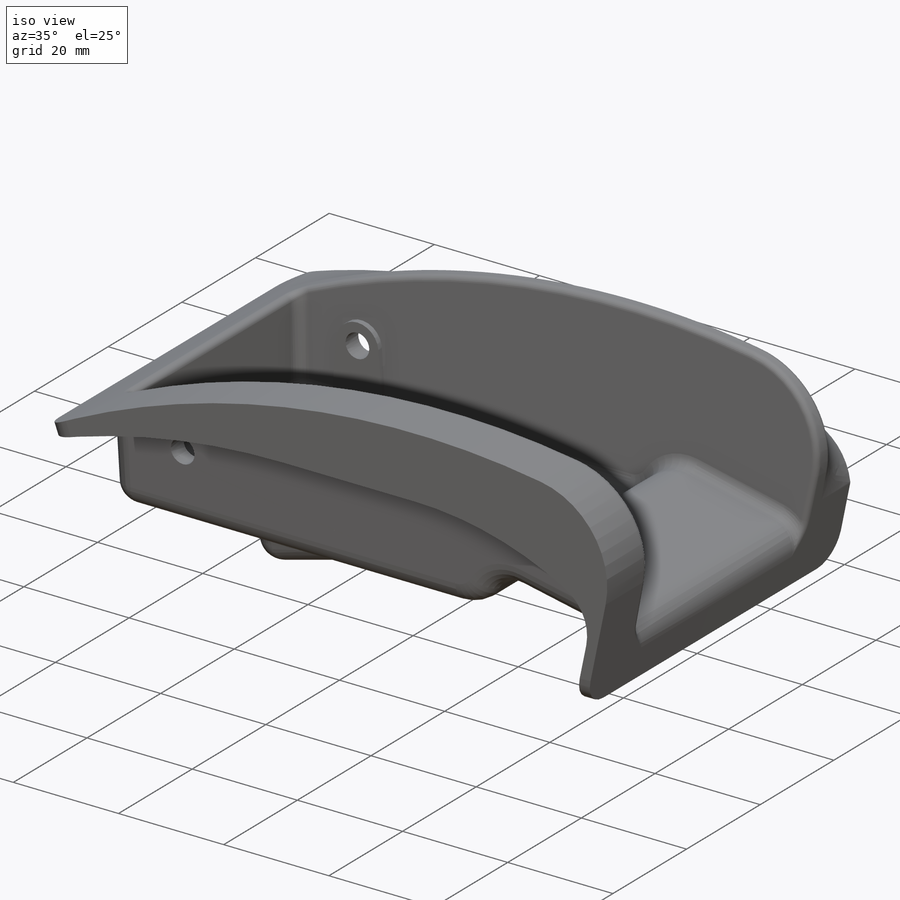
[diagram: iso view]
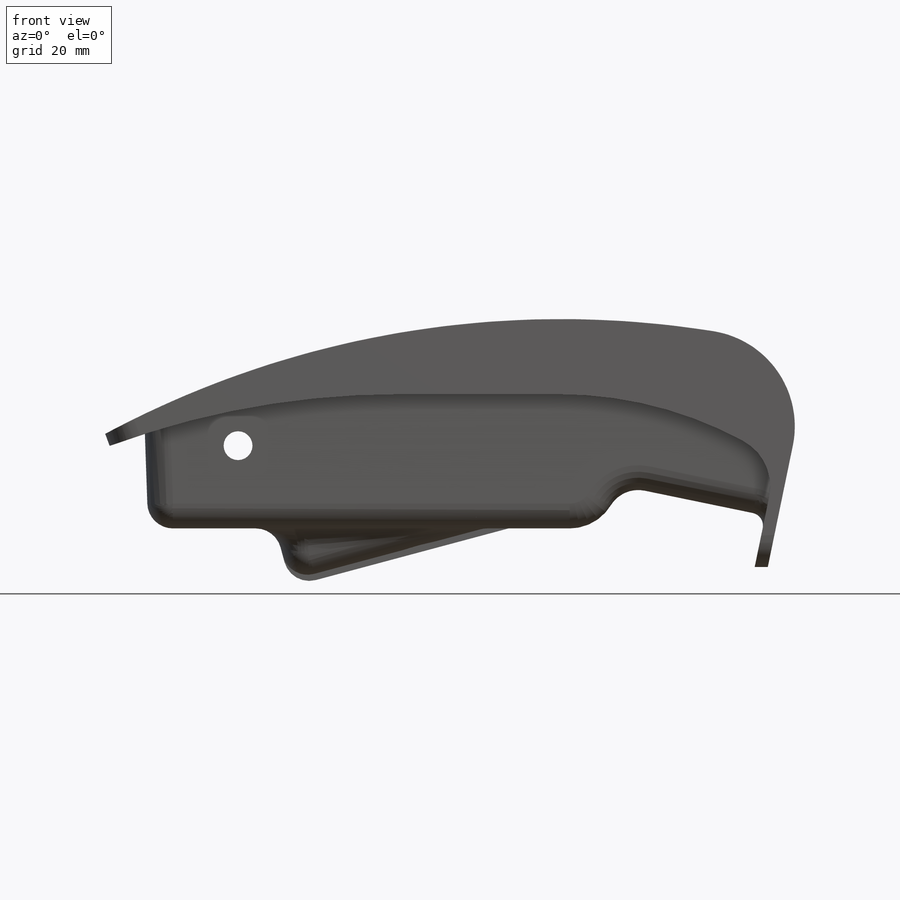
[diagram: front view]
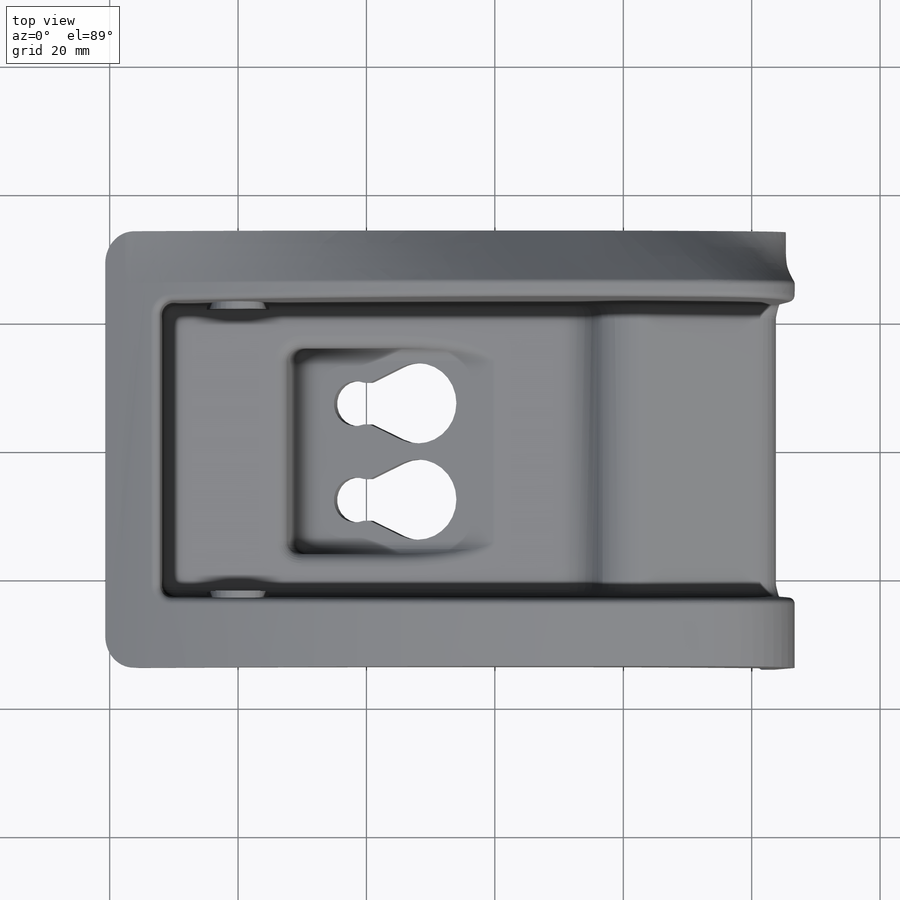
[diagram: top view]
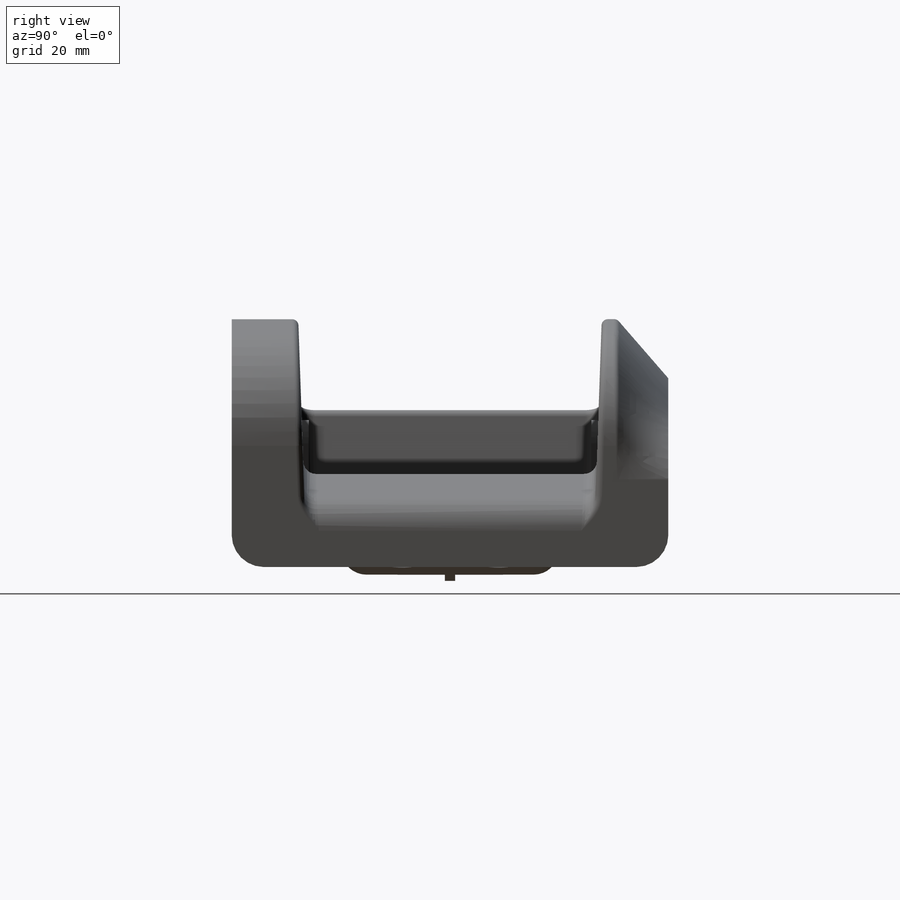
[diagram: right view]
SOLIDWORKS PART (.sldprt)
format: sldprt  version: not decoded by parser v0  size: 1,120,256 bytes
history: native  units: mm
features: sketch x20, extrude x12, plane x6, cut_extrude x4, shell x4, fillet x3, material x1 (+8 scaffold rows collapsed)
feature tree (58):
  scaffold x8  (default folders/planes/origin — collapsed)
  material  "Material <nicht festgelegt>"
  plane  "Vorne"
  plane  "Oben"
  plane  "Rechts"
  sketch  "Skizze1"  dims[c1.D1=100.0mm c1.D2=60.0mm c2.D1=130.0mm c2.D3=15.0mm c2.D4=10.0mm c2.D5=4.0mm c2.D6=60.0mm c3.D5=50.0mm c3.D1=68.0mm c4.D5=2.0mm c4.D6=2.0mm c4.D7=5.0mm]
  sketch  "Skizze3"
  cut_extrude  "Schnitt-Linear austragen1"  [1 undecoded]
  sketch  "Skizze4"  dims[D1=2.0mm]
  extrude  "Aufsatz-Linear austragen1"  [1 undecoded]
  fillet  "Verrundung1"  Radius=10mm
  sketch  "Skizze6"  dims[c1.D1=6.0mm c1.D2=6.0mm c2.D1=54.0mm c2.D3=17.0mm c2.D4=14.0mm]
  extrude  "Aufsatz-Linear austragen2"  Depth=50mm
  fillet  "Formschräge2"  [1 undecoded]
  fillet  "Formschräge3"  [1 undecoded]
  shell  "Wandung1"  Thickness=2.5mm
  sketch  "Skizze7"  dims[D3=4.5mm D1=8.0mm D2=40.0mm]
  cut_extrude  "Schnitt-Linear austragen2"  Depth=100mm
  plane  "Ebene1"  Offset=22mm
  plane  "Ebene2"  Offset=22mm
  sketch  "Skizze16"  dims[c1.D1=15.0mm c1.D3=150.0mm c1.D2=24.0mm c2.D1=4.0mm]
  sketch  "Skizze8"  dims[c1.D1=8.0mm c1.D2=~11.781744mm c2.D2=5.0deg c2.D3=~10.187029mm c3.D3=5.0deg]
  extrude  "Aufsatz-Linear austragen3"  [1 undecoded]
  sketch  "Skizze9"  dims[D1=0.0mm D2=0.0mm]
  extrude  "Aufsatz-Linear austragen4"  [1 undecoded]
  sketch  "Skizze10"  dims[c1.D1=4.5mm c1.D3=4.5mm c2.D1=8.0mm c2.D2=~11.720519mm c3.D2=75.0deg c3.D3=21.0mm]
  extrude  "Aufsatz-Linear austragen5"  Depth=34mm
  sketch  "Skizze11"  dims[D1=2.0mm]
  cut_extrude  "Schnitt-Linear austragen3"  Depth=32mm
  sketch  "Skizze12"  dims[c1.D1=7.0mm c1.D9=~11.702185mm c1.D4=12.5mm c1.D5=3.5mm c1.D2=7.5mm c1.D3=13.5mm c2.D4=13.0mm c2.D5=24.0mm c2.D6=25.0mm c2.D7=6.5mm c2.D8=1.0mm c3.D7=6.5mm c3.D9=1.0mm c4.D7=6.5mm c4.D5=12.0mm c4.D6=31.5mm c5.D5=10.0mm]
  cut_extrude  "Schnitt-Linear austragen5"  [1 undecoded]
  sketch  "Skizze13"  dims[D1=1.6mm]
  extrude  "Aufsatz-Linear austragen6"  Depth=1mm
  sketch  "Skizze14"  dims[D1=0.0mm]
  extrude  "Aufsatz-Linear austragen8"  [1 undecoded]
  sketch  "Skizze15"  dims[D1=0.0mm]
  extrude  "Aufsatz-Linear austragen9"  Depth=4mm
  extrude  "Aufsatz-Linear austragen11"  [1 undecoded]
  sketch  "Skizze17"  dims[D1=0.0mm]
  extrude  "Aufsatz-Linear austragen12"  [1 undecoded]
  sketch  "Skizze18"
  extrude  "Aufsatz-Linear austragen13"  [1 undecoded]
  sketch  "Skizze19"  dims[D1=0.0mm]
  extrude  "Aufsatz-Linear austragen14"  Depth=2mm
  plane  "Ebene4"  Offset=26mm
  sketch  "Skizze22"
  shell  "TrennlinieSeite"  [1 undecoded]
  sketch  "Skizze20"
  shell  "TrennlinieVorne"  [1 undecoded]
  sketch  "Skizze21"
  shell  "TrennlinieHinten"  Thickness=1mm
decode coverage: 25 of 43 modeling features carry decoded parameters
note: ~ marks probable driven/reference dimensions
note: 13 parameter values undecoded
summary: no parameter record found for 13 features
note: suppression state not decoded; provenance and decode notes live in map.json
